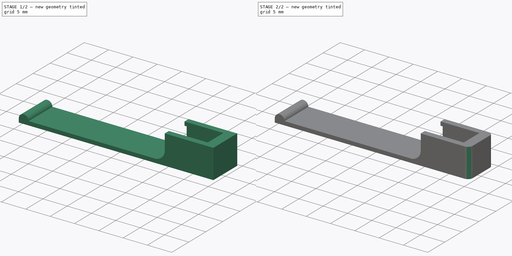
[diagram: build sequence overview — one tinted view per stage of 2, left to right]
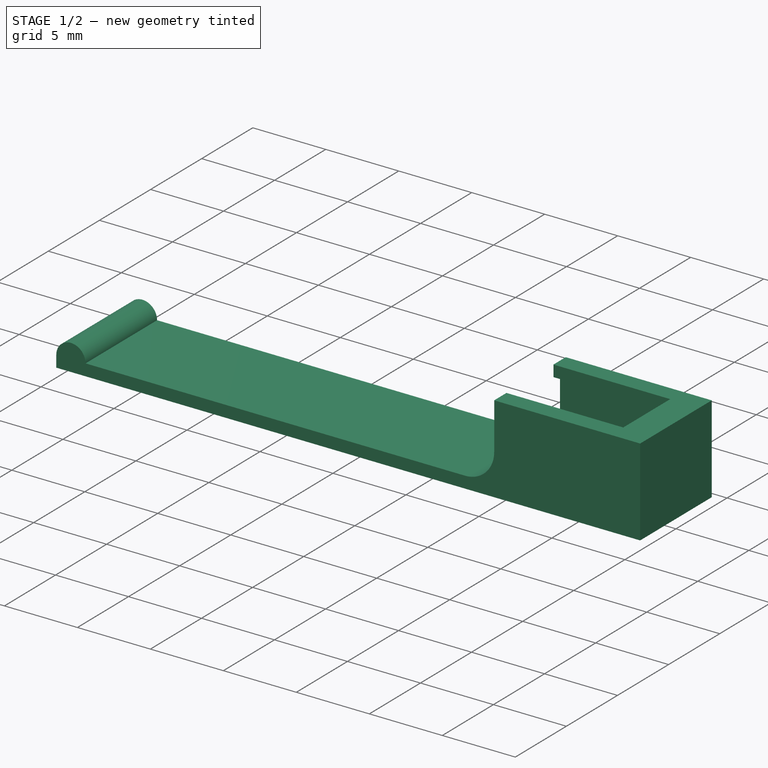
[diagram: stage 1 of 2 — iso view after this stage's code; geometry added in this stage tinted green]
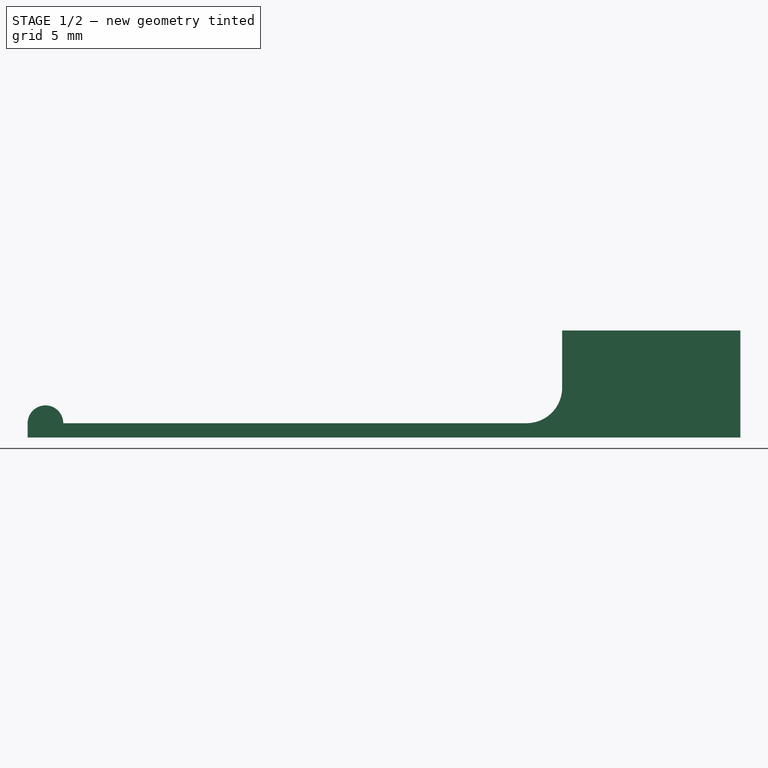
[diagram: stage 1 of 2 — front view after this stage's code; geometry added in this stage tinted green]
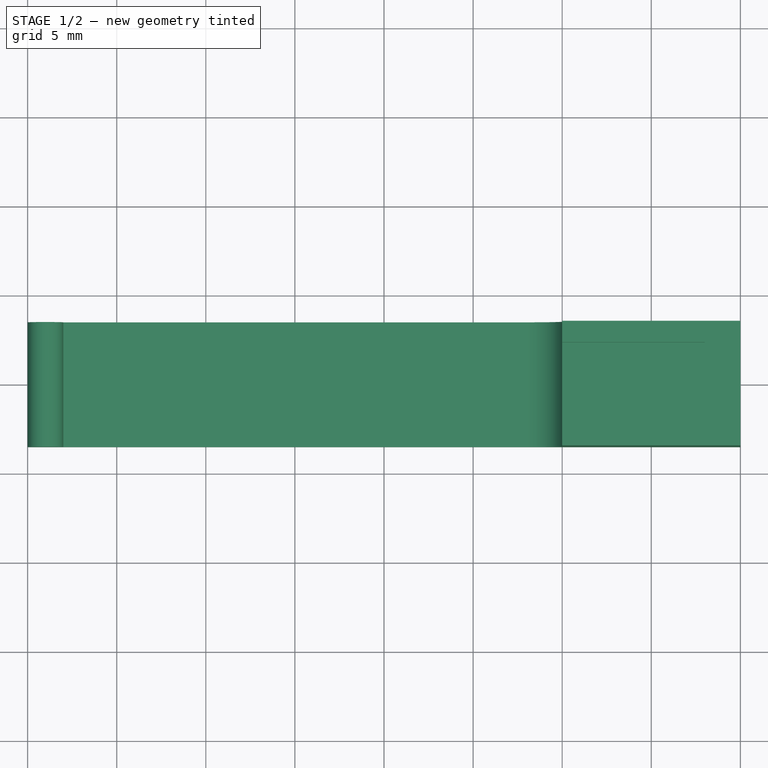
[diagram: stage 1 of 2 — top view after this stage's code; geometry added in this stage tinted green]
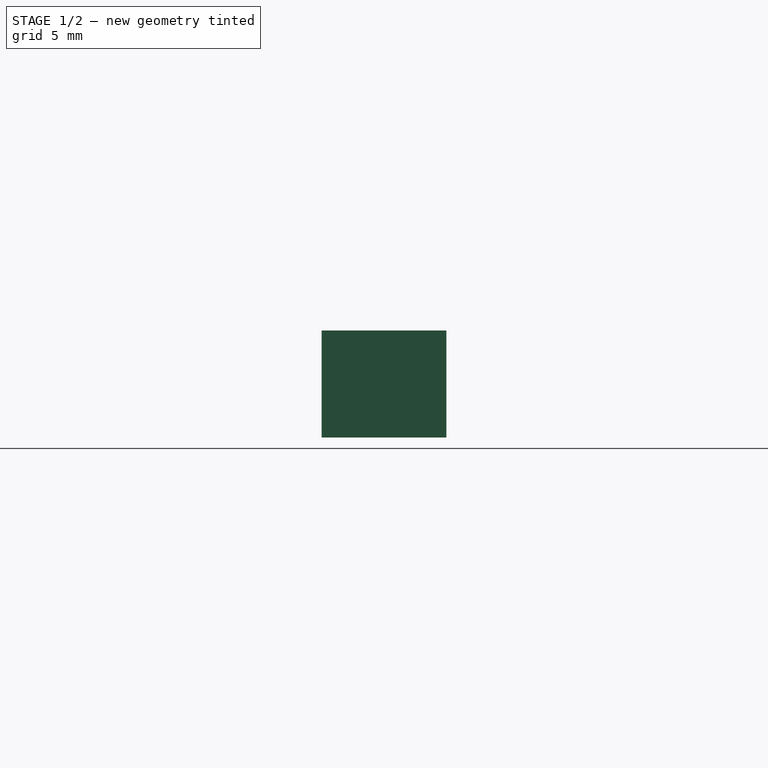
[diagram: stage 1 of 2 — right view after this stage's code; geometry added in this stage tinted green]
FCSTD DOCUMENT  (FreeCAD 1.1R38946 (Git))
Label: clip bic
License: Creative Commons Attribution-NonCommercial-ShareAlike 3.0
LicenseURL: https://creativecommons.org/licenses/by-nc-sa/3.0/
objects: Sketcher::SketchObject×2, PartDesign::Pad×1, PartDesign::Pocket×1, PartDesign::Fillet×1, PartDesign::Body×1
note: 14 computed .brp shape members not serialized (recipe doc carries the construction recipe); baked Part::Feature solids carry a one-line shape summary decoded from their .brp

FEATURE [Sketcher::SketchObject] Sketch
  ArcFitTolerance = 1e-06
  AttachmentSupport = -> [XZ_Plane]
  FullyConstrained = true
  MakeInternals = false
  MapMode = 5
  Placement = pos=(0,0,0) rot=(1,0,0;1.5708rad)
  sketch-geometry (8):
    g0: LineSegment StartX=-40 StartY=0 StartZ=0 EndX=0 EndY=0 EndZ=0
    g1: LineSegment StartX=0 StartY=0 StartZ=0 EndX=0 EndY=6 EndZ=0
    g2: LineSegment StartX=0 StartY=6 StartZ=0 EndX=-10 EndY=6 EndZ=0
    g3: LineSegment StartX=-10 StartY=6 StartZ=0 EndX=-10 EndY=2.8 EndZ=0
    g4: ArcOfCircle CenterX=-12 CenterY=2.8 CenterZ=0 NormalX=0 NormalY=0 NormalZ=1 AngleXU=0 Radius=2 StartAngle=4.71239 EndAngle=6.28319
    g5: LineSegment StartX=-12 StartY=0.8 StartZ=0 EndX=-38 EndY=0.8 EndZ=0
    g6: ArcOfCircle CenterX=-39 CenterY=0.8 CenterZ=0 NormalX=0 NormalY=0 NormalZ=1 AngleXU=0 Radius=1 StartAngle=0 EndAngle=3.14159
    g7: LineSegment StartX=-40 StartY=0.8 StartZ=0 EndX=-40 EndY=0 EndZ=0
  constraints (22):
    c: PointOnObject(g0,g-1)
    c: Coincident(g0,g-1)
    c: Coincident(g0,g1)
    c: Vertical(g1)
    c: Coincident(g1,g2)
    c: Horizontal(g2)
    c: Coincident(g2,g3)
    c: Vertical(g3)
    c: Tangent(g3,g4) = 1.5708
    c: Coincident(g4,g5)
    c: Horizontal(g5)
    c: Perpendicular(g5,g6) = 4.71239
    c: Tangent(g6,g7) = -1.5708
    c: DistanceX(g0,g0) = 40
    c: Vertical(g7)
    c: Coincident(g7,g0)
    c: Radius(g6) = 1
    c: DistanceX(g2,g2) = 10
    c: Tangent(g5,g4,g4) = 1.5708
    c: Distance(g5,g0) = 0.8
    c: Distance(g1,g1) = 6
    c: Radius(g4) = 2
FEATURE [PartDesign::Pad] Pad
  Direction = (0,-1,2e-16)
  Length = 7
  Length2 = 10
  Midplane = true
  Placement = pos=(0,0,0) rot=(1,0,0;1.5708rad)
  Profile = -> Sketch
  ReferenceAxis = -> Sketch [N_Axis]
  Refine = true
  Suppressed = false
  Type = 0
FEATURE [Sketcher::SketchObject] Sketch001
  ArcFitTolerance = 1e-06
  FullyConstrained = false
  MakeInternals = false
  MapMode = 5
  Placement = pos=(-10,0,0) rot=(0.707107,0,-0.707107;3.14159rad)
  sketch-geometry (8):
    g0: LineSegment StartX=-6 StartY=-2.29813 StartZ=0 EndX=-6 EndY=2.29813 EndZ=0
    g1: LineSegment StartX=-6 StartY=2.29813 StartZ=0 EndX=-5.22464 EndY=2.29813 EndZ=0
    g2: LineSegment StartX=-5.22464 StartY=2.29813 StartZ=0 EndX=-5.20147 EndY=2.93401 EndZ=0
    g3: LineSegment StartX=-5.20147 StartY=2.93401 StartZ=0 EndX=-2.17184 EndY=2.93401 EndZ=0
    g4: LineSegment StartX=-2.17184 StartY=2.93401 StartZ=0 EndX=-2.17184 EndY=-2.93401 EndZ=0
    g5: LineSegment StartX=-2.17184 StartY=-2.93401 StartZ=0 EndX=-5.22464 EndY=-2.93401 EndZ=0
    g6: LineSegment StartX=-5.22464 StartY=-2.93401 StartZ=0 EndX=-5.22464 EndY=-2.29813 EndZ=0
    g7: LineSegment StartX=-5.22464 StartY=-2.29813 StartZ=0 EndX=-6 EndY=-2.29813 EndZ=0
  constraints (17):
    c: PointOnObject(g0,g-3)
    c: PointOnObject(g0,g-3)
    c: Coincident(g0,g1)
    c: Horizontal(g1)
    c: Coincident(g1,g2)
    c: Coincident(g2,g3)
    c: Horizontal(g3)
    c: Coincident(g3,g4)
    c: Coincident(g4,g5)
    c: Horizontal(g5)
    c: Coincident(g5,g6)
    c: Vertical(g6)
    c: Coincident(g6,g7)
    c: Coincident(g7,g0)
    c: Horizontal(g7)
    c: Symmetric(g6,g1,g-1)
    c: Symmetric(g4,g3,g-1)
FEATURE [PartDesign::Pocket] Pocket
  BaseFeature = -> Pad
  Direction = (1,0,2e-16)
  Length = 5
  Length2 = 5
  Offset = -2
  Placement = pos=(0,0,0) rot=(1,0,0;1.5708rad)
  Profile = -> Sketch001
  ReferenceAxis = -> Sketch001 [N_Axis]
  Refine = true
  Suppressed = false
  Type = 2
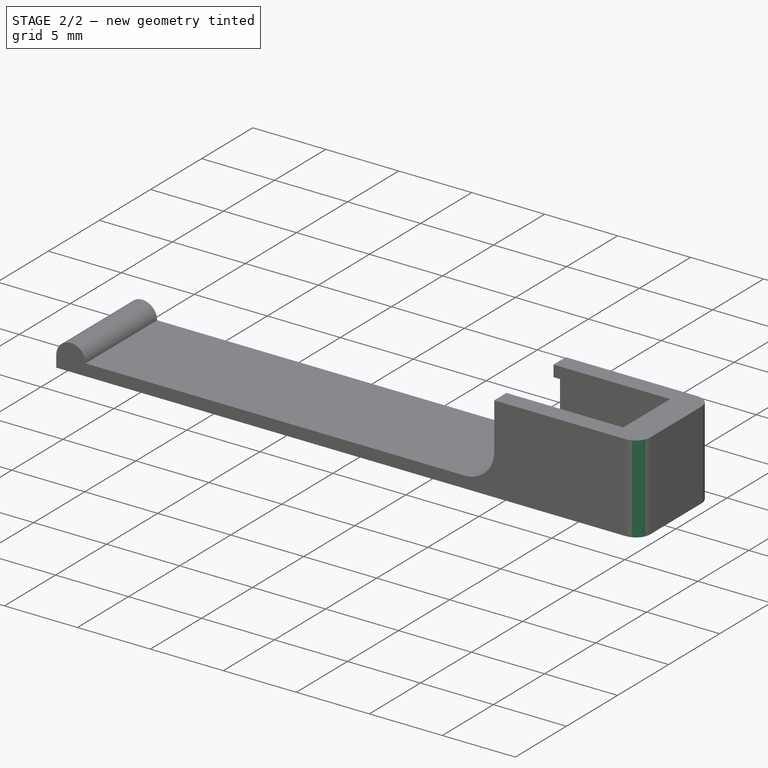
[diagram: stage 2 of 2 — iso view after this stage's code; geometry added in this stage tinted green]
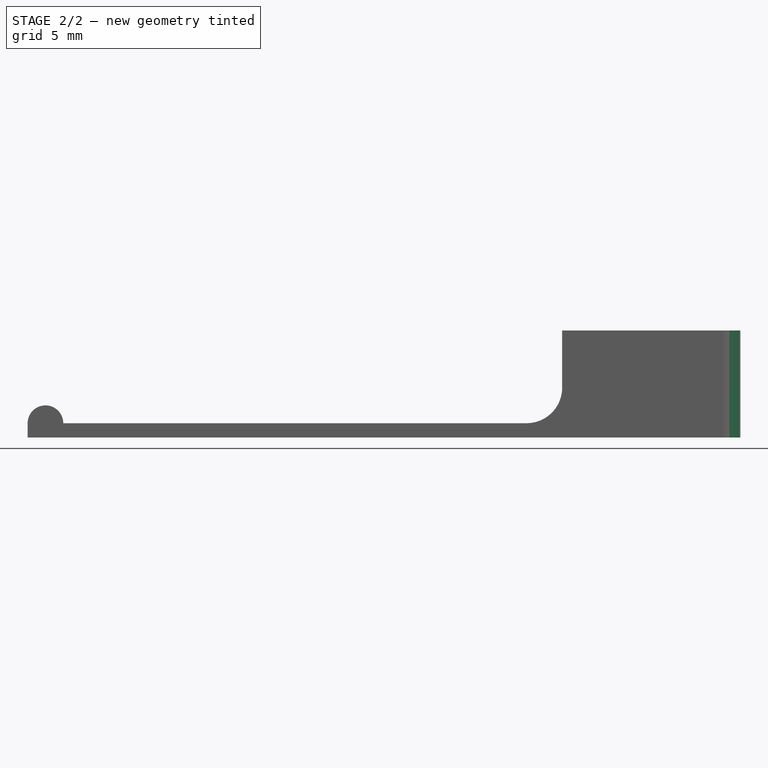
[diagram: stage 2 of 2 — front view after this stage's code; geometry added in this stage tinted green]
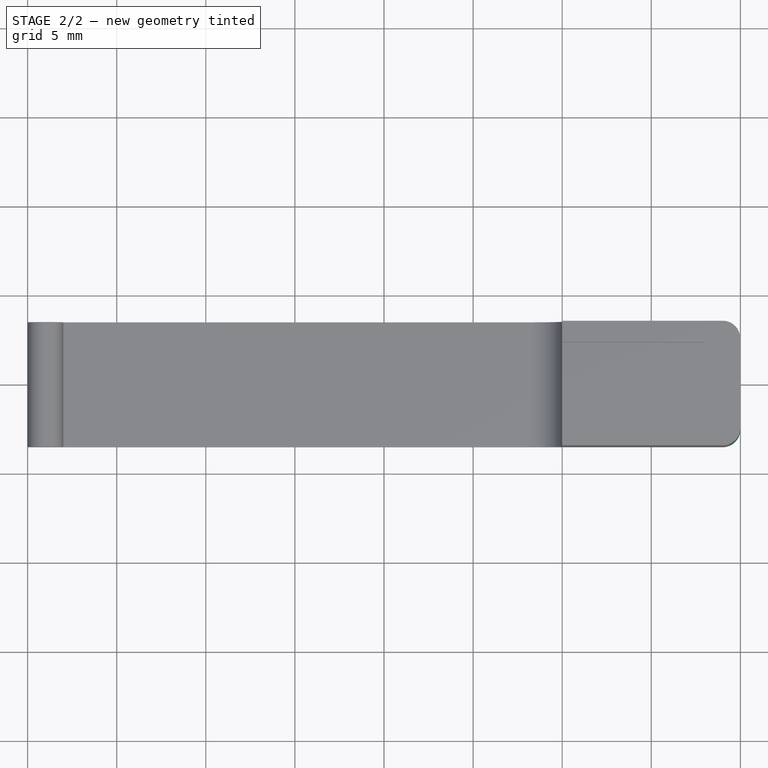
[diagram: stage 2 of 2 — top view after this stage's code; geometry added in this stage tinted green]
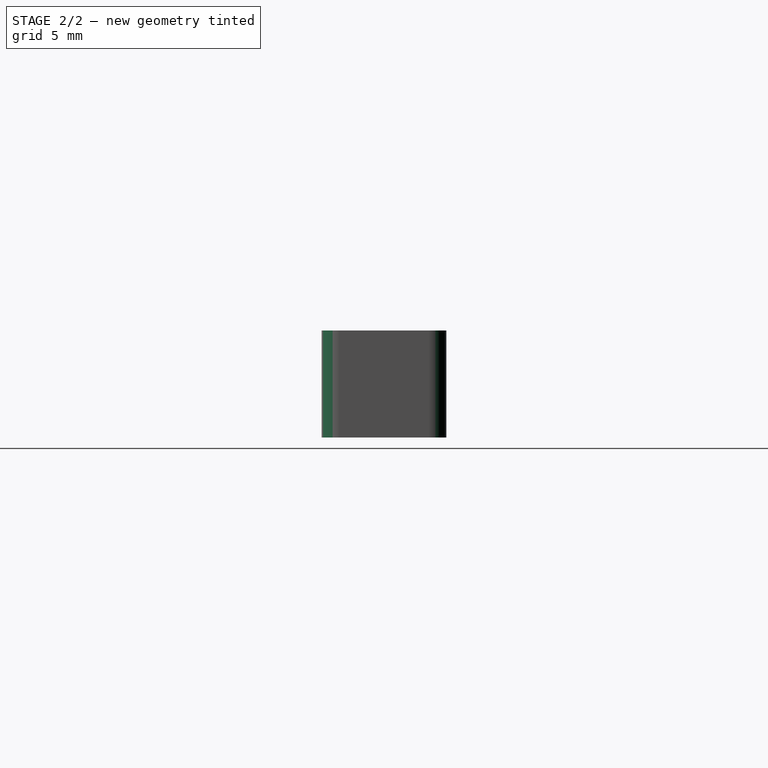
[diagram: stage 2 of 2 — right view after this stage's code; geometry added in this stage tinted green]
FEATURE [PartDesign::Fillet] Fillet
  Base = -> Pocket [Edge10,Edge9]
  BaseFeature = -> Pocket
  Placement = pos=(0,0,0) rot=(1,0,0;1.5708rad)
  Radius = 1
  Refine = true
  SupportTransform = false
  Suppressed = false
  UseAllEdges = false
FEATURE [PartDesign::Body] Body  label="BIC Clip"
  AllowCompound = false
  Group = -> [Sketch,Pad,Sketch001,Pocket,Fillet]
  Origin = -> Origin
  Tip = -> Fillet
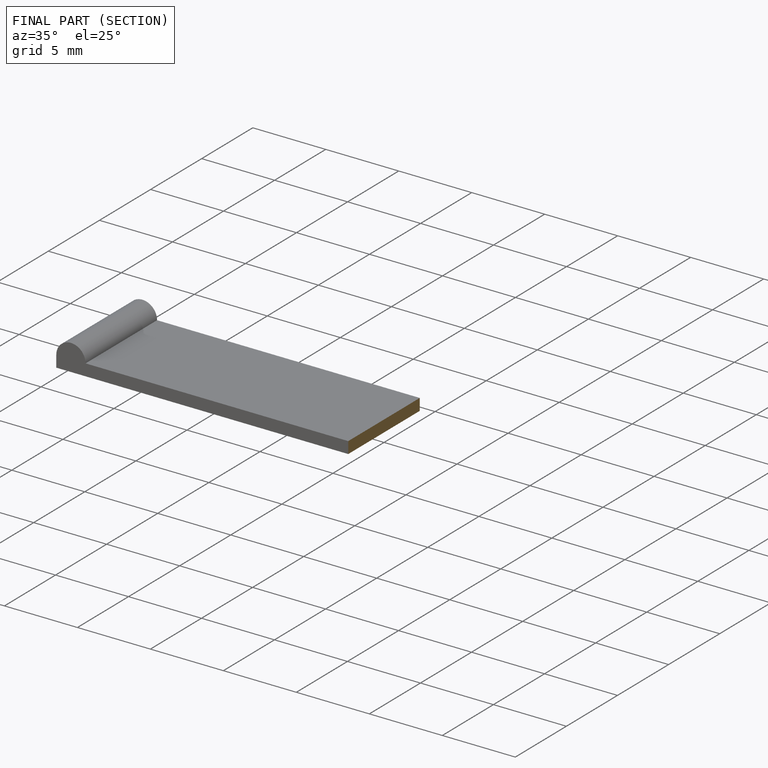
[diagram: finished part — half-section view (interior)]
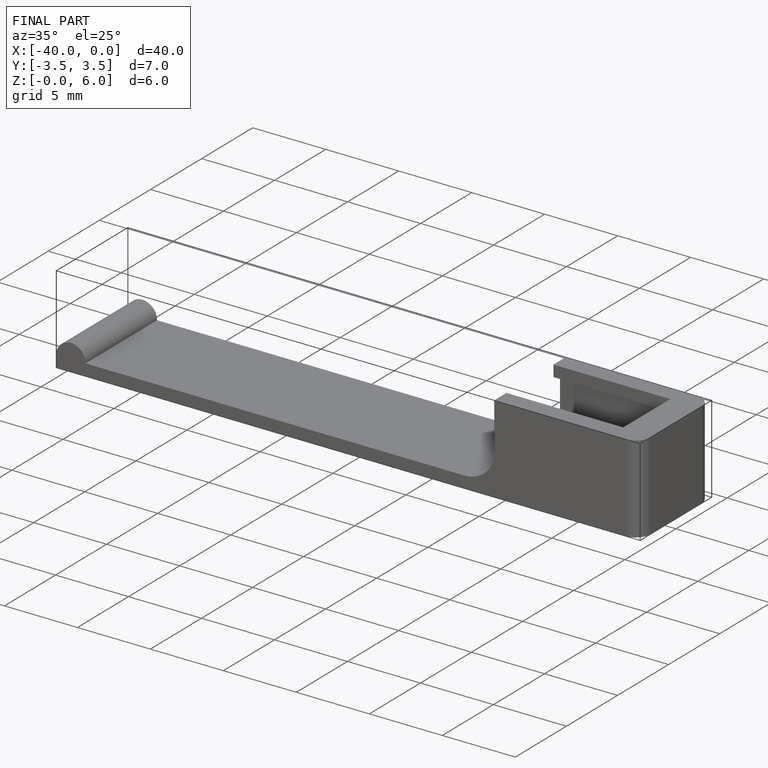
[diagram: finished part — iso view with bounding-box wireframe]
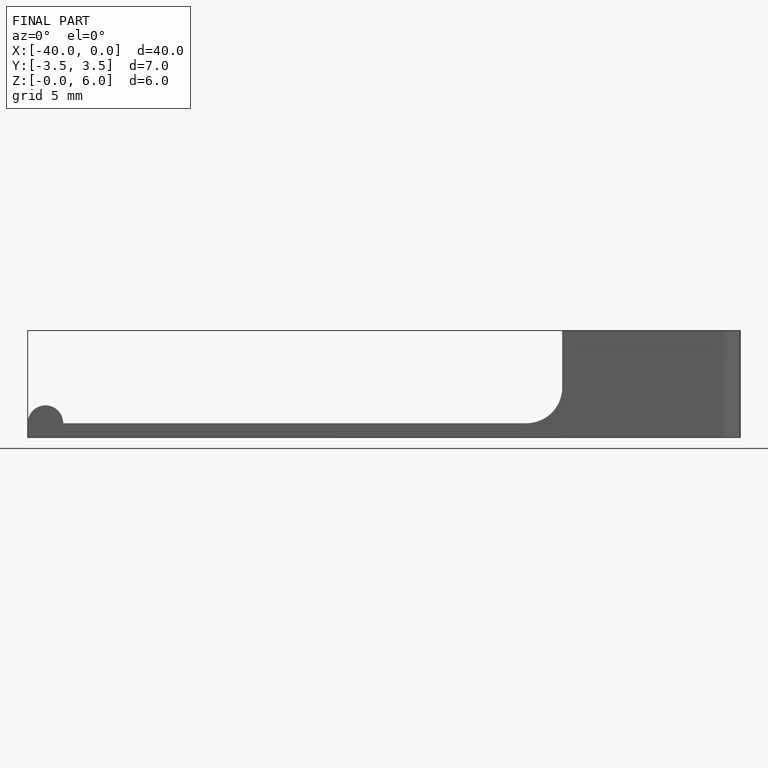
[diagram: finished part — front view with bounding-box wireframe]
